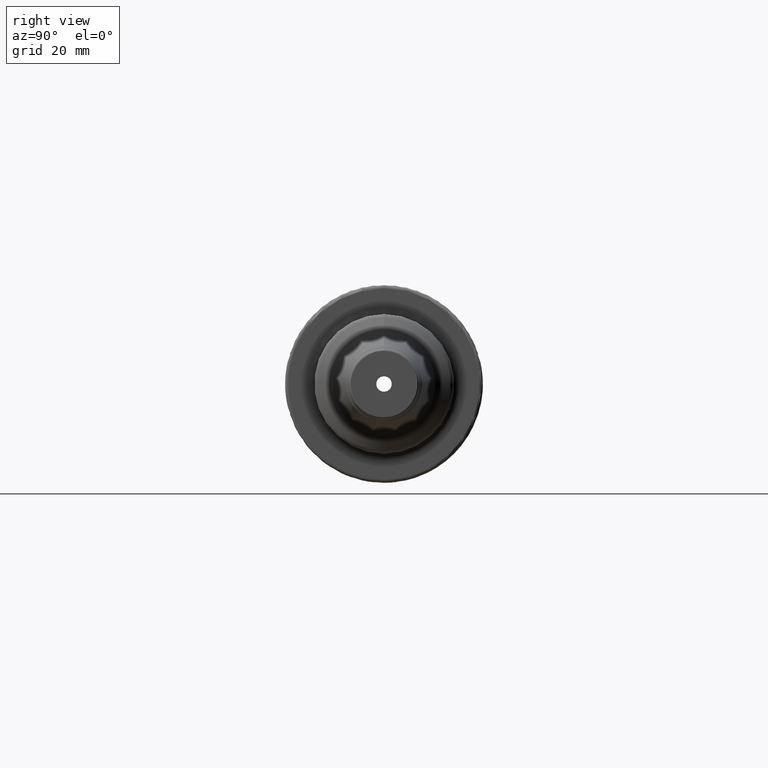
[diagram: clean part render]
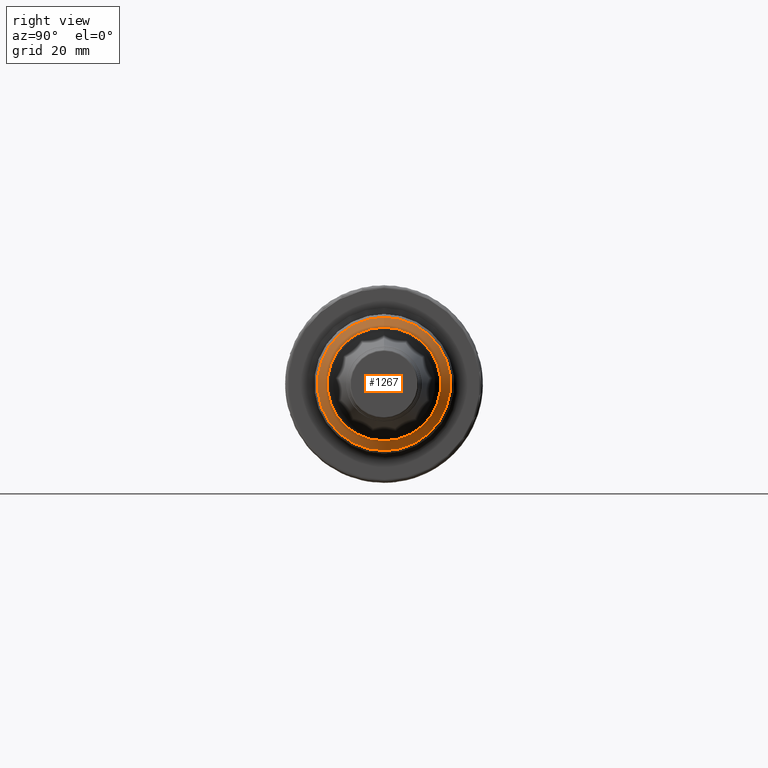
[diagram: same view with one face highlighted and labeled with its STEP entity id]
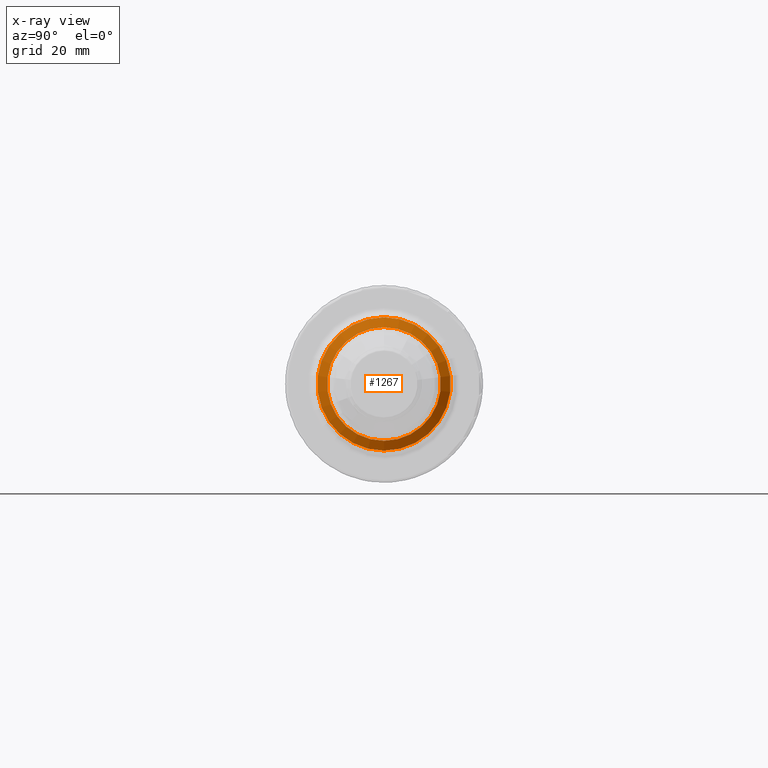
[diagram: x-ray of the same camera — body ghosted, the highlighted face saturated]
A machine part, right view. The second image highlights one B-rep face of the part: STEP entity #1267.
The next image is the same camera in x-ray: the body ghosted, the highlighted face saturated — about 0% of this face is hidden behind the body in this view.
In plain terms, the highlighted conical surface has half-angle 60 deg.
Its self-contained STEP definition (entity closure, byte-faithful):
#98=LINE('',#1985,#169);
#169=VECTOR('',#1564,19.245388964152);
#240=CONICAL_SURFACE('',#1377,19.245388964152,1.0471975511966);
#263=FACE_OUTER_BOUND('',#346,.T.);
#346=EDGE_LOOP('',(#857,#858,#859,#860));
#433=CIRCLE('',#1372,18.1216316443699);
#437=CIRCLE('',#1378,21.25);
#528=VERTEX_POINT('',#1974);
#531=VERTEX_POINT('',#1984);
#650=EDGE_CURVE('',#528,#528,#433,.T.);
#655=EDGE_CURVE('',#528,#531,#98,.T.);
#656=EDGE_CURVE('',#531,#531,#437,.T.);
#857=ORIENTED_EDGE('',*,*,#650,.F.);
#858=ORIENTED_EDGE('',*,*,#655,.T.);
#859=ORIENTED_EDGE('',*,*,#656,.F.);
#860=ORIENTED_EDGE('',*,*,#655,.F.);
#1267=ADVANCED_FACE('',(#263),#240,.T.);
#1372=AXIS2_PLACEMENT_3D('',#1975,#1551,#1552);
#1377=AXIS2_PLACEMENT_3D('',#1983,#1562,#1563);
#1378=AXIS2_PLACEMENT_3D('',#1986,#1565,#1566);
#1551=DIRECTION('center_axis',(1.,0.,0.));
#1552=DIRECTION('ref_axis',(0.,0.,1.));
#1562=DIRECTION('center_axis',(-1.,0.,0.));
#1563=DIRECTION('ref_axis',(0.,0.,-1.));
#1564=DIRECTION('',(-0.499999999999999,-1.06057523872491E-16,0.866025403784439));
#1565=DIRECTION('center_axis',(-1.,0.,0.));
#1566=DIRECTION('ref_axis',(0.,0.,1.));
#1974=CARTESIAN_POINT('',(48.9140886007231,-2.21925981886049E-15,18.1216316443699));
#1975=CARTESIAN_POINT('Origin',(48.9140886007231,-2.21925981886049E-15,
0.));
#1983=CARTESIAN_POINT('Origin',(48.2652870096431,0.,0.));
#1984=CARTESIAN_POINT('',(47.1079242884758,-2.60237444818813E-15,21.25));
#1985=CARTESIAN_POINT('',(48.2652870096431,-2.35688039932946E-15,19.245388964152));
#1986=CARTESIAN_POINT('Origin',(47.1079242884758,-2.60237444818813E-15,
0.));